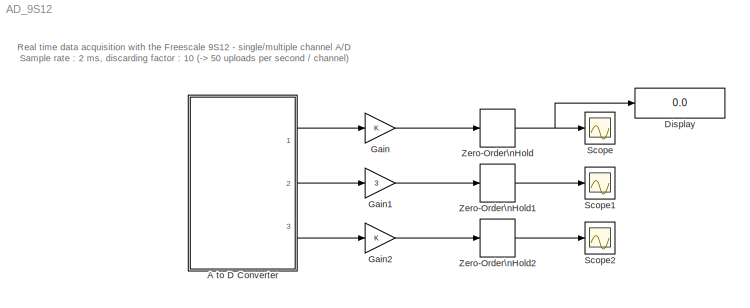
MODEL AD_9S12
KIND model
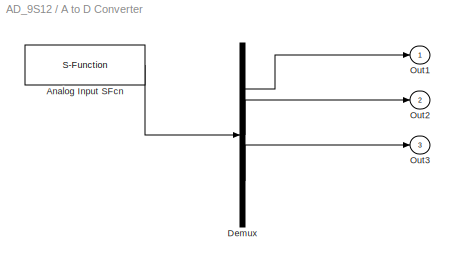
BLOCK [SubSystem] A to D Converter
  Ports = [0, 3]
  RequestExecContextInheritance = off
  SID = 1
  ShowPortLabels = none
  Tag = mcTarget_adc
BLOCK [S-Function] A to D Converter/Analog Input SFcn
  EnableBusSupport = off
  FunctionName = adc_sfcn_9S12
  Parameters = bank-1, firstChannel, numChannels, use10bits-1, normalize, sampletime
  Ports = [0, 1]
  SFcnIsStateOwnerBlock = off
  SFunctionDeploymentMode = off
  SID = 1:12
  Tag = mcTarget_adc
BLOCK [Demux] A to D Converter/Demux
  Outputs = 3
  Ports = [1, 3]
  SID = 1:13
BLOCK [Outport] A to D Converter/Out1
  IconDisplay = Port number
  SID = 1:14
BLOCK [Outport] A to D Converter/Out2
  IconDisplay = Port number
  Port = 2
  SID = 1:1
BLOCK [Outport] A to D Converter/Out3
  IconDisplay = Port number
  Port = 3
  SID = 1:2
BLOCK [Display] Display
  Decimation = 1
  Ports = [1]
  SID = 2
BLOCK [Gain] Gain
  SID = 3
BLOCK [Gain] Gain1
  Gain = 3
  SID = 4
BLOCK [Gain] Gain2
  SID = 5
BLOCK [Scope] Scope
  Floating = off
  NumInputPorts = 1
  Ports = [1]
  SID = 6
  ScopeSpecificationString = C++SS(StrPVP('Location','[168, 506, 442, 680]'),StrPVP('Open','off'),MxPVP('AxesTitles',54,'struct(''axes1'',''%<SignalLabel>'')'),StrPVP('TimeRange','2'),StrPVP('YMin','-1'),StrPVP('YMax','6'),StrPVP('DataFormat','StructureWithTime'),StrPVP('LimitDataPoints','on'),StrPVP('Decimation','1'),StrPVP('BlockParamSampleInput','off'))
BLOCK [Scope] Scope1
  Floating = off
  NumInputPorts = 1
  Ports = [1]
  SID = 7
  ScopeSpecificationString = C++SS(StrPVP('Location','[453, 506, 729, 680]'),StrPVP('Open','off'),MxPVP('AxesTitles',54,'struct(''axes1'',''%<SignalLabel>'')'),StrPVP('TimeRange','2'),StrPVP('YMin','0'),StrPVP('YMax','16'),StrPVP('SaveName','ScopeData1'),StrPVP('DataFormat','StructureWithTime'),StrPVP('LimitDataPoints','on'),StrPVP('Decimation','1'),StrPVP('BlockParamSampleInput','off'))
BLOCK [Scope] Scope2
  Floating = off
  NumInputPorts = 1
  Ports = [1]
  SID = 8
  ScopeSpecificationString = C++SS(StrPVP('Location','[738, 507, 1019, 682]'),StrPVP('Open','off'),MxPVP('AxesTitles',54,'struct(''axes1'',''%<SignalLabel>'')'),StrPVP('TimeRange','2'),StrPVP('YMin','-1'),StrPVP('YMax','6'),StrPVP('SaveName','ScopeData2'),StrPVP('DataFormat','StructureWithTime'),StrPVP('LimitDataPoints','on'),StrPVP('Decimation','1'),StrPVP('BlockParamSampleInput','off'))
BLOCK [ZeroOrderHold] Zero-Order\nHold
  SID = 9
  SampleTime = 0.02
BLOCK [ZeroOrderHold] Zero-Order\nHold1
  SID = 10
  SampleTime = 0.02
BLOCK [ZeroOrderHold] Zero-Order\nHold2
  SID = 11
  SampleTime = 0.02
ANNOTATION (root): Real time data acquisition with the Freescale 9S12 - single/multiple channel A/D\nSample rate : 2 ms, discarding factor : 10 (-> 50 uploads per second / channel)
LINE A to D Converter/Analog Input SFcn:1 -> A to D Converter/Demux:1
LINE A to D Converter/Demux:1 -> A to D Converter/Out1:1
LINE A to D Converter/Demux:2 -> A to D Converter/Out2:1
LINE A to D Converter/Demux:3 -> A to D Converter/Out3:1
LINE A to D Converter:1 -> Gain:1
LINE A to D Converter:2 -> Gain1:1
LINE A to D Converter:3 -> Gain2:1
LINE Gain1:1 -> Zero-Order\nHold1:1
LINE Gain2:1 -> Zero-Order\nHold2:1
LINE Gain:1 -> Zero-Order\nHold:1
LINE Zero-Order\nHold1:1 -> Scope1:1
LINE Zero-Order\nHold2:1 -> Scope2:1
NET Zero-Order\nHold:1 -> Display:1, Scope:1
note: NET lines group one-source signal fan-out (src -> all destinations, sorted); 1:1 wires keep LINE
